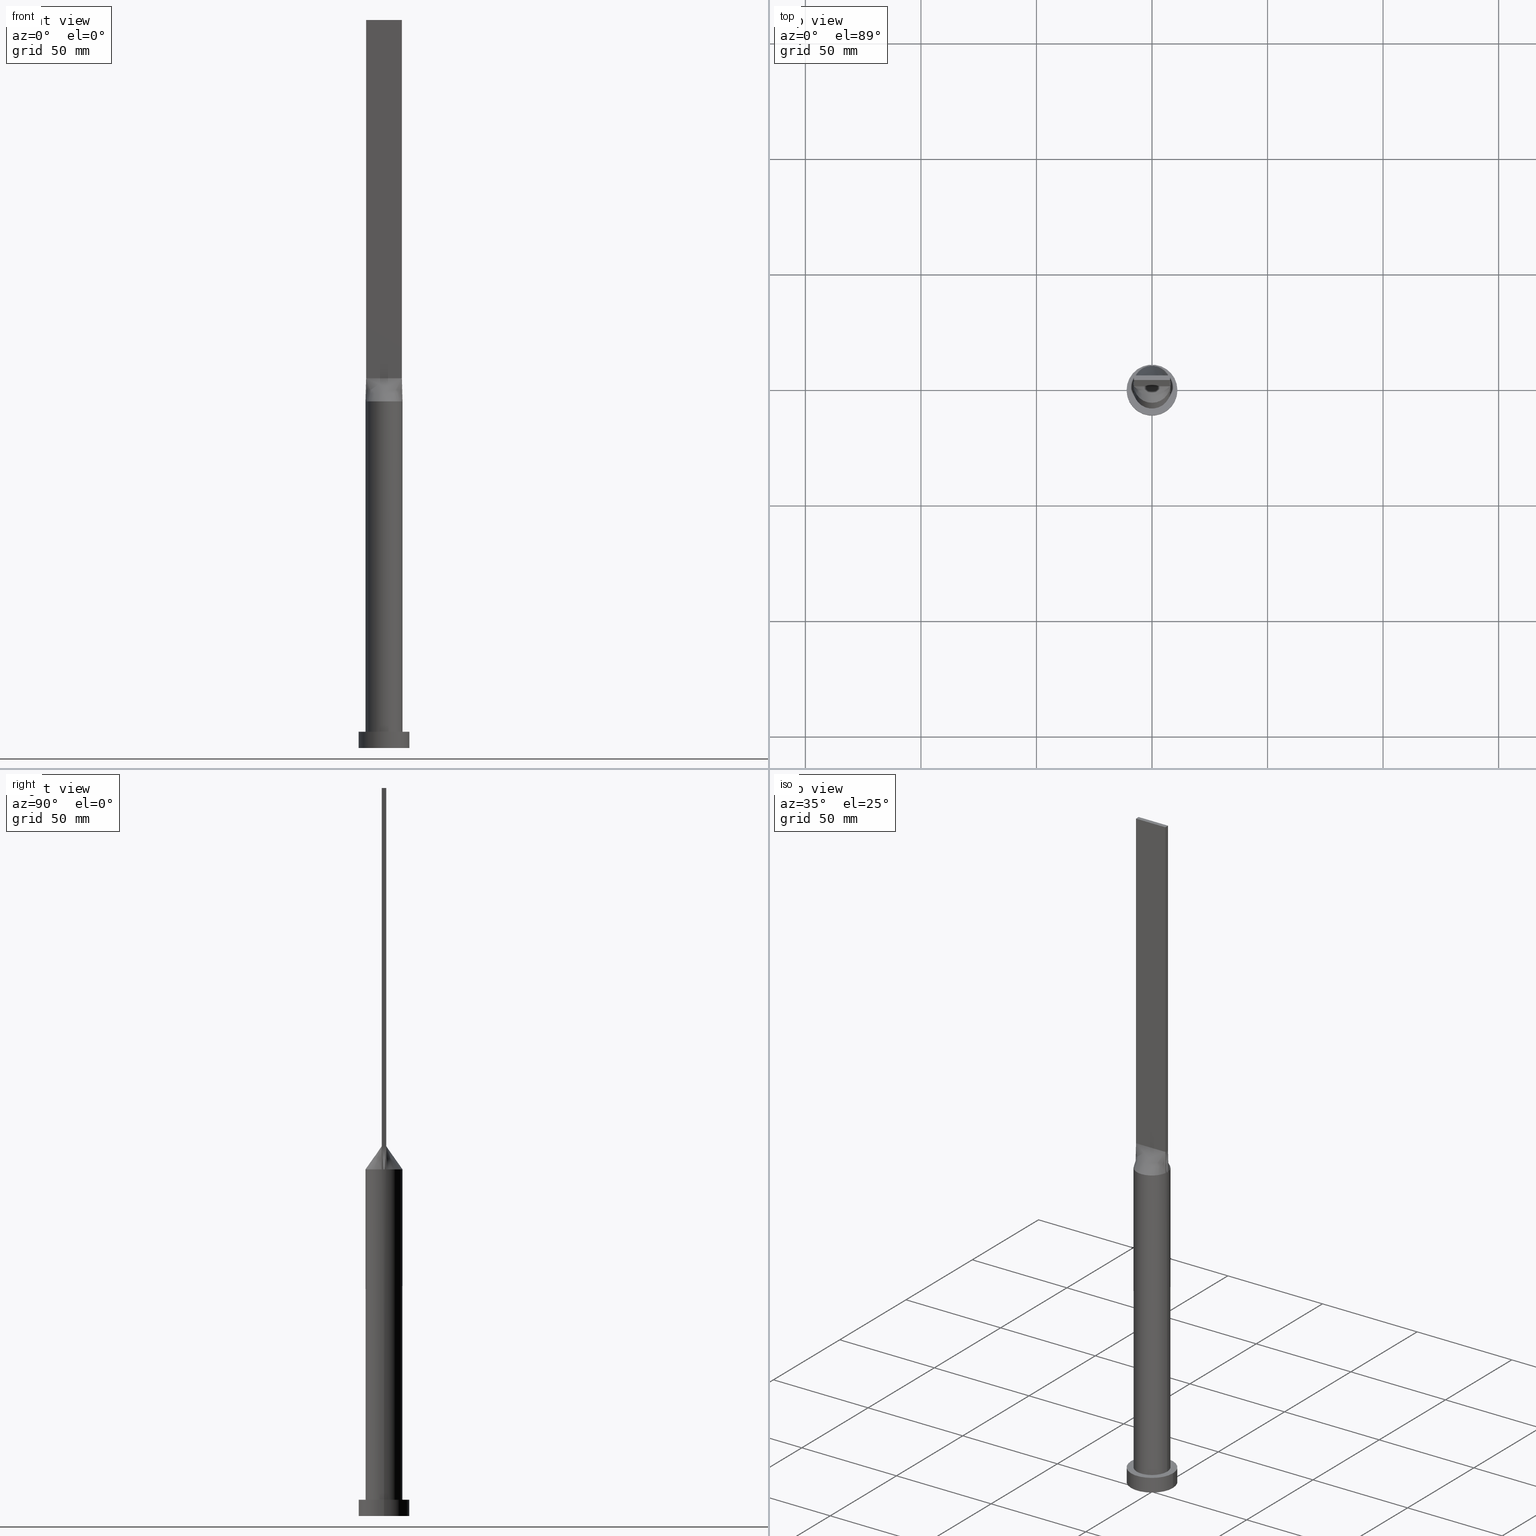
[diagram: canonical four-view strip — front | top / right | iso, engineering-drawing reading convention]
A machine part, canonical four-view strip (front | top / right | iso — engineering-drawing reading convention). The complete STEP part file that produces these views, byte-faithful:
ISO-10303-21;
HEADER;
FILE_DESCRIPTION (( 'STEP AP203' ),
    '1' );
FILE_NAME ('4bbe.STEP',
    '2023-02-13T08:32:22',
    ( '' ),
    ( '' ),
    'SwSTEP 2.0',
    'SolidWorks 2019',
    '' );
FILE_SCHEMA (( 'CONFIG_CONTROL_DESIGN' ));
ENDSEC;

DATA;
#1 = LOCAL_TIME ( 9, 32, 22.00000000000000000, #497 ) ;
#2 = LINE ( 'NONE', #356, #428 ) ;
#3 = CARTESIAN_POINT ( 'NONE',  ( 7.104166666666666963, 1.000000000000000000, 159.9999999999999716 ) ) ;
#4 = VERTEX_POINT ( 'NONE', #477 ) ;
#5 = ADVANCED_FACE ( 'NONE', ( #32 ), #42, .F. ) ;
#6 = CARTESIAN_POINT ( 'NONE',  ( 6.226863775955932212, 5.046530946333158241, 149.9999999999999716 ) ) ;
#7 = LINE ( 'NONE', #157, #421 ) ;
#8 = CARTESIAN_POINT ( 'NONE',  ( 1.291666666666668739, 1.000000000000000000, 159.9999999999999716 ) ) ;
#9 = CARTESIAN_POINT ( 'NONE',  ( 7.750000000000000000, 1.000000000000000000, 160.0000000000000000 ) ) ;
#10 = CARTESIAN_POINT ( 'NONE',  ( -2.302877821226939403, -7.683241396761614439, 150.0000000000000284 ) ) ;
#11 = CARTESIAN_POINT ( 'NONE',  ( -6.511821874825407974, 4.668925682402791821, 149.9999999999999716 ) ) ;
#12 = CARTESIAN_POINT ( 'NONE',  ( 6.511821874825409751, 4.668925682402791821, 149.9999999999999716 ) ) ;
#13 = CIRCLE ( 'NONE', #592, 8.000000000000000000 ) ;
#14 = CARTESIAN_POINT ( 'NONE',  ( 2.847317194822259534, 7.497028652483948008, 150.0000000000000000 ) ) ;
#15 = PERSON_AND_ORGANIZATION_ROLE ( 'design_supplier' ) ;
#16 = CARTESIAN_POINT ( 'NONE',  ( -7.934257051336532029, -1.023775119746132001, 150.0000000000000000 ) ) ;
#17 = CARTESIAN_POINT ( 'NONE',  ( 0.000000000000000000, 0.000000000000000000, 7.000000000000000000 ) ) ;
#18 = CARTESIAN_POINT ( 'NONE',  ( -0.6458333333333359239, -0.9999999999999991118, 160.0000000000000284 ) ) ;
#19 = EDGE_CURVE ( 'NONE', #57, #145, #350, .T. ) ;
#20 = APPLICATION_PROTOCOL_DEFINITION ( 'international standard', 'config_control_design', 1994, #574 ) ;
#21 = FACE_OUTER_BOUND ( 'NONE', #85, .T. ) ;
#22 = CARTESIAN_POINT ( 'NONE',  ( 8.000000000000000000, 9.797174393178825657E-16, 7.000000000000000000 ) ) ;
#23 = CARTESIAN_POINT ( 'NONE',  ( -6.511821874825407974, 4.668925682402791821, 149.9999999999999716 ) ) ;
#24 = CARTESIAN_POINT ( 'NONE',  ( -2.260416666666668295, -0.9999999999999991118, 160.0000000000000284 ) ) ;
#25 = DIRECTION ( 'NONE',  ( 0.01841911599500828389, -0.002376660128387961778, 0.9998275289531671772 ) ) ;
#26 = EDGE_CURVE ( 'NONE', #332, #280, #345, .T. ) ;
#27 = CARTESIAN_POINT ( 'NONE',  ( 2.847317194822259534, 7.497028652483948008, 150.0000000000000000 ) ) ;
#28 = EDGE_LOOP ( 'NONE', ( #506, #33, #198, #623 ) ) ;
#29 = VECTOR ( 'NONE', #25, 1000.000000000000114 ) ;
#30 = DIRECTION ( 'NONE',  ( -0.000000000000000000, -0.000000000000000000, -1.000000000000000000 ) ) ;
#31 = DIRECTION ( 'NONE',  ( 0.000000000000000000, 0.000000000000000000, 1.000000000000000000 ) ) ;
#32 = FACE_OUTER_BOUND ( 'NONE', #126, .T. ) ;
#33 = ORIENTED_EDGE ( 'NONE', *, *, #38, .T. ) ;
#34 = PLANE ( 'NONE',  #284 ) ;
#35 = PERSON ( 'NEUR�EN�', 'NEUR�EN�', 'NEUR�EN�', ('NEUR�EN�'), ('NEUR�EN�'), ('NEUR�EN�') ) ;
#36 = CC_DESIGN_SECURITY_CLASSIFICATION ( #369, ( #546 ) ) ;
#37 = EDGE_LOOP ( 'NONE', ( #150, #517, #473, #135 ) ) ;
#38 = EDGE_CURVE ( 'NONE', #4, #332, #483, .T. ) ;
#39 = ORIENTED_EDGE ( 'NONE', *, *, #271, .T. ) ;
#40 = ORIENTED_EDGE ( 'NONE', *, *, #276, .F. ) ;
#41 =( GEOMETRIC_REPRESENTATION_CONTEXT ( 3 ) GLOBAL_UNCERTAINTY_ASSIGNED_CONTEXT ( ( #450 ) ) GLOBAL_UNIT_ASSIGNED_CONTEXT ( ( #107, #573, #45 ) ) REPRESENTATION_CONTEXT ( 'NONE', 'WORKASPACE' ) );
#42 = PLANE ( 'NONE',  #498 ) ;
#43 = EDGE_LOOP ( 'NONE', ( #437, #465 ) ) ;
#44 = EDGE_CURVE ( 'NONE', #514, #231, #258, .T. ) ;
#45 =( NAMED_UNIT ( * ) SI_UNIT ( $, .STERADIAN. ) SOLID_ANGLE_UNIT ( ) );
#46 = DIRECTION ( 'NONE',  ( -0.000000000000000000, -0.000000000000000000, -1.000000000000000000 ) ) ;
#47 = DIRECTION ( 'NONE',  ( 6.994852725712932707E-17, 1.000000000000000000, -0.000000000000000000 ) ) ;
#48 = DIRECTION ( 'NONE',  ( 0.000000000000000000, -1.000000000000000000, 0.000000000000000000 ) ) ;
#49 = EDGE_LOOP ( 'NONE', ( #596, #133, #79, #520 ) ) ;
#50 = VECTOR ( 'NONE', #559, 1000.000000000000000 ) ;
#51 = CARTESIAN_POINT ( 'NONE',  ( -2.260416666666664742, 1.000000000000000000, 159.9999999999999716 ) ) ;
#52 = DIRECTION ( 'NONE',  ( -0.01841911599500828389, 0.002376660128388244104, 0.9998275289531671772 ) ) ;
#53 = CARTESIAN_POINT ( 'NONE',  ( -5.166666666666666963, -0.9999999999999986677, 159.9999999999999716 ) ) ;
#54 = ORIENTED_EDGE ( 'NONE', *, *, #354, .F. ) ;
#55 = CARTESIAN_POINT ( 'NONE',  ( 0.6458333333333352577, 1.000000000000000000, 159.9999999999999716 ) ) ;
#56 = CARTESIAN_POINT ( 'NONE',  ( 7.934222933072200945, -1.023770701041574860, 150.0000000000000000 ) ) ;
#57 = VERTEX_POINT ( 'NONE', #616 ) ;
#58 = LINE ( 'NONE', #165, #60 ) ;
#59 = PLANE ( 'NONE',  #264 ) ;
#60 = VECTOR ( 'NONE', #300, 1000.000000000000000 ) ;
#61 = EDGE_CURVE ( 'NONE', #303, #280, #192, .T. ) ;
#62 = PLANE ( 'NONE',  #138 ) ;
#63 = CARTESIAN_POINT ( 'NONE',  ( -1.614583333333335480, -0.9999999999999991118, 160.0000000000000284 ) ) ;
#64 = DIRECTION ( 'NONE',  ( 1.000000000000000000, -6.994852725712931474E-17, 0.000000000000000000 ) ) ;
#65 = CARTESIAN_POINT ( 'NONE',  ( 2.583333333333331705, -0.9999999999999991118, 159.9999999999999716 ) ) ;
#66 = VECTOR ( 'NONE', #52, 1000.000000000000114 ) ;
#67 = ORIENTED_EDGE ( 'NONE', *, *, #69, .F. ) ;
#68 = CARTESIAN_POINT ( 'NONE',  ( -2.583333333333335258, -0.9999999999999988898, 160.0000000000000000 ) ) ;
#69 = EDGE_CURVE ( 'NONE', #433, #145, #519, .T. ) ;
#70 = ORIENTED_EDGE ( 'NONE', *, *, #443, .T. ) ;
#71 = CARTESIAN_POINT ( 'NONE',  ( -8.000000000000000000, 0.000000000000000000, 150.0000000000000000 ) ) ;
#72 = CARTESIAN_POINT ( 'NONE',  ( 0.000000000000000000, 0.000000000000000000, 7.000000000000000000 ) ) ;
#73 = EDGE_LOOP ( 'NONE', ( #236, #70, #39, #187, #222, #176 ) ) ;
#74 = FACE_OUTER_BOUND ( 'NONE', #182, .T. ) ;
#75 = DIRECTION ( 'NONE',  ( -0.01841911599500828389, -0.002376660128388048514, 0.9998275289531671772 ) ) ;
#76 = CARTESIAN_POINT ( 'NONE',  ( -6.226863775955933100, 5.046530946333157353, 150.0000000000000000 ) ) ;
#77 = DIRECTION ( 'NONE',  ( 1.000000000000000000, 0.000000000000000000, 0.000000000000000000 ) ) ;
#78 = DIRECTION ( 'NONE',  ( 1.000000000000000000, 0.000000000000000000, 0.000000000000000000 ) ) ;
#79 = ORIENTED_EDGE ( 'NONE', *, *, #372, .T. ) ;
#80 = VECTOR ( 'NONE', #555, 1000.000000000000000 ) ;
#81 = APPROVAL ( #445, 'NEUR�EN�' ) ;
#82 = CARTESIAN_POINT ( 'NONE',  ( -7.750000000000000000, 1.000000000000000000, 315.0000000000000000 ) ) ;
#83 = AXIS2_PLACEMENT_3D ( 'NONE', #278, #30, #375 ) ;
#84 = ORIENTED_EDGE ( 'NONE', *, *, #61, .F. ) ;
#85 = EDGE_LOOP ( 'NONE', ( #572, #335, #244, #105, #571 ) ) ;
#86 = DIRECTION ( 'NONE',  ( -0.000000000000000000, 1.000000000000000000, -0.000000000000000000 ) ) ;
#87 = CARTESIAN_POINT ( 'NONE',  ( 5.489583333333333037, 1.000000000000000000, 159.9999999999999716 ) ) ;
#88 = EDGE_CURVE ( 'NONE', #373, #380, #482, .T. ) ;
#89 = CARTESIAN_POINT ( 'NONE',  ( 0.000000000000000000, 0.000000000000000000, 315.0000000000000000 ) ) ;
#90 = EDGE_LOOP ( 'NONE', ( #423, #54, #40, #254 ) ) ;
#91 = AXIS2_PLACEMENT_3D ( 'NONE', #455, #591, #156 ) ;
#92 = AXIS2_PLACEMENT_3D ( 'NONE', #250, #447, #160 ) ;
#93 = CARTESIAN_POINT ( 'NONE',  ( 11.00000000000000000, 1.347111479062088405E-15, 7.000000000000000000 ) ) ;
#94 = ORIENTED_EDGE ( 'NONE', *, *, #365, .F. ) ;
#95 = CARTESIAN_POINT ( 'NONE',  ( 7.849610172922084850, -1.679519592204998357, 149.9999999999999716 ) ) ;
#96 = DIRECTION ( 'NONE',  ( 0.000000000000000000, -1.000000000000000000, 0.000000000000000000 ) ) ;
#97 = ORIENTED_EDGE ( 'NONE', *, *, #302, .T. ) ;
#98 = FACE_OUTER_BOUND ( 'NONE', #37, .T. ) ;
#99 = PLANE ( 'NONE',  #608 ) ;
#100 = AXIS2_PLACEMENT_3D ( 'NONE', #282, #469, #567 ) ;
#101 = APPROVAL_ROLE ( '' ) ;
#102 = CARTESIAN_POINT ( 'NONE',  ( 0.5861720261543130750, 7.999999999999998224, 149.9999999999999716 ) ) ;
#103 = FACE_OUTER_BOUND ( 'NONE', #384, .T. ) ;
#104 = CARTESIAN_POINT ( 'NONE',  ( 6.511821874825409751, 4.668925682402791821, 149.9999999999999716 ) ) ;
#105 = ORIENTED_EDGE ( 'NONE', *, *, #26, .F. ) ;
#106 = CARTESIAN_POINT ( 'NONE',  ( 1.172177046651856624, 7.934824862069278950, 150.0000000000000000 ) ) ;
#107 =( LENGTH_UNIT ( ) NAMED_UNIT ( * ) SI_UNIT ( .MILLI., .METRE. ) );
#108 = DIRECTION ( 'NONE',  ( 1.000000000000000000, 0.000000000000000000, 0.000000000000000000 ) ) ;
#109 = CARTESIAN_POINT ( 'NONE',  ( 6.458333333333333037, 1.000000000000000000, 159.9999999999999716 ) ) ;
#110 = CARTESIAN_POINT ( 'NONE',  ( -4.197916666666666075, 1.000000000000000000, 160.0000000000000284 ) ) ;
#111 = CARTESIAN_POINT ( 'NONE',  ( -7.750000000000000000, -0.9999999999999986677, 315.0000000000000000 ) ) ;
#112 = CARTESIAN_POINT ( 'NONE',  ( 7.750000000000000000, 1.000000000000000000, 160.0000000000000000 ) ) ;
#113 = DATE_AND_TIME ( #361, #403 ) ;
#114 = CARTESIAN_POINT ( 'NONE',  ( -7.934222933072200945, 1.023770701041573972, 150.0000000000000000 ) ) ;
#115 = CARTESIAN_POINT ( 'NONE',  ( 0.000000000000000000, 0.000000000000000000, 150.0000000000000000 ) ) ;
#116 = CIRCLE ( 'NONE', #640, 8.000000000000000000 ) ;
#117 = PERSON_AND_ORGANIZATION_ROLE ( 'classification_officer' ) ;
#118 = CARTESIAN_POINT ( 'NONE',  ( 7.750000000000000000, -0.9999999999999997780, 315.0000000000000000 ) ) ;
#119 = CIRCLE ( 'NONE', #439, 8.000000000000000000 ) ;
#120 = B_SPLINE_SURFACE_WITH_KNOTS ( 'NONE', 3, 1, ( 
 ( #390, #344 ),
 ( #528, #436 ),
 ( #295, #633 ),
 ( #536, #307 ),
 ( #188, #53 ),
 ( #588, #387 ),
 ( #247, #575 ),
 ( #639, #394 ),
 ( #144, #149 ),
 ( #533, #68 ),
 ( #210, #24 ),
 ( #319, #63 ),
 ( #10, #406 ),
 ( #267, #18 ),
 ( #416, #402 ),
 ( #213, #552 ),
 ( #274, #411 ),
 ( #593, #601 ),
 ( #505, #161 ),
 ( #598, #310 ),
 ( #540, #65 ),
 ( #166, #457 ),
 ( #461, #217 ),
 ( #607, #124 ),
 ( #496, #239 ),
 ( #521, #628 ),
 ( #184, #481 ),
 ( #146, #342 ),
 ( #95, #294 ),
 ( #638, #392 ) ),
 .UNSPECIFIED., .F., .F., .F.,
 ( 4, 2, 2, 2, 2, 2, 2, 2, 2, 2, 2, 2, 2, 2, 4 ),
 ( 2, 2 ),
 ( 0.000000000000000000, 0.1250000000000000555, 0.1875000000000000555, 0.2500000000000000555, 0.3125000000000000000, 0.3750000000000000000, 0.4374999999999999445, 0.4999999999999999445, 0.5624999999999998890, 0.6249999999999998890, 0.6875000000000000000, 0.7500000000000000000, 0.8125000000000000000, 0.8750000000000000000, 1.000000000000000000 ),
 ( 0.000000000000000000, 1.000000000000000000 ),
 .UNSPECIFIED. ) ;
#121 = CARTESIAN_POINT ( 'NONE',  ( -7.675166908885236339, 2.399868494543667907, 150.0000000000000284 ) ) ;
#122 = EDGE_CURVE ( 'NONE', #141, #288, #563, .T. ) ;
#123 = CARTESIAN_POINT ( 'NONE',  ( -7.750000000000000000, -0.6666666666666652974, 159.9999999999999716 ) ) ;
#124 = CARTESIAN_POINT ( 'NONE',  ( 4.197916666666666075, -0.9999999999999993339, 159.9999999999999716 ) ) ;
#125 = CC_DESIGN_PERSON_AND_ORGANIZATION_ASSIGNMENT ( #277, #15, ( #546 ) ) ;
#126 = EDGE_LOOP ( 'NONE', ( #67, #139 ) ) ;
#127 = DIRECTION ( 'NONE',  ( -0.000000000000000000, -0.000000000000000000, -1.000000000000000000 ) ) ;
#128 = APPROVAL_PERSON_ORGANIZATION ( #454, #308, #463 ) ;
#129 = CARTESIAN_POINT ( 'NONE',  ( 2.302877821226935406, 7.683241396761612663, 150.0000000000000000 ) ) ;
#130 = CARTESIAN_POINT ( 'NONE',  ( 7.750000000000000000, 1.000000000000000000, 160.0000000000000000 ) ) ;
#131 = CARTESIAN_POINT ( 'NONE',  ( 0.000000000000000000, 0.000000000000000000, 0.000000000000000000 ) ) ;
#132 = ADVANCED_FACE ( 'NONE', ( #233 ), #621, .T. ) ;
#133 = ORIENTED_EDGE ( 'NONE', *, *, #613, .T. ) ;
#134 = CARTESIAN_POINT ( 'NONE',  ( -11.00000000000000000, 0.000000000000000000, 7.000000000000000000 ) ) ;
#135 = ORIENTED_EDGE ( 'NONE', *, *, #396, .F. ) ;
#136 = SHAPE_DEFINITION_REPRESENTATION ( #420, #499 ) ;
#137 = DIRECTION ( 'NONE',  ( -0.000000000000000000, -0.000000000000000000, -1.000000000000000000 ) ) ;
#138 = AXIS2_PLACEMENT_3D ( 'NONE', #17, #318, #460 ) ;
#139 = ORIENTED_EDGE ( 'NONE', *, *, #627, .F. ) ;
#140 = EDGE_LOOP ( 'NONE', ( #529, #84, #614, #286 ) ) ;
#141 = VERTEX_POINT ( 'NONE', #564 ) ;
#142 = PERSON_AND_ORGANIZATION ( #35, #577 ) ;
#143 = CARTESIAN_POINT ( 'NONE',  ( -7.104166666666667851, 1.000000000000000000, 160.0000000000000284 ) ) ;
#144 = CARTESIAN_POINT ( 'NONE',  ( -5.183259239191617240, -6.116644610143057825, 150.0000000000000000 ) ) ;
#145 = VERTEX_POINT ( 'NONE', #334 ) ;
#146 = CARTESIAN_POINT ( 'NONE',  ( 7.675166908885234562, -2.399868494543666131, 150.0000000000000284 ) ) ;
#147 = CALENDAR_DATE ( 2023, 13, 2 ) ;
#148 = CIRCLE ( 'NONE', #368, 11.00000000000000000 ) ;
#149 = CARTESIAN_POINT ( 'NONE',  ( -3.229166666666667407, -0.9999999999999986677, 160.0000000000000000 ) ) ;
#150 = ORIENTED_EDGE ( 'NONE', *, *, #218, .F. ) ;
#151 = EDGE_CURVE ( 'NONE', #610, #339, #472, .T. ) ;
#152 = CARTESIAN_POINT ( 'NONE',  ( 4.333237558274722900, 6.745559271922132893, 150.0000000000000000 ) ) ;
#153 = CARTESIAN_POINT ( 'NONE',  ( 7.934252830235720033, 1.023774570959714802, 150.0000000000000000 ) ) ;
#154 = CARTESIAN_POINT ( 'NONE',  ( -1.172177046651856402, 7.934824862069282503, 150.0000000000000000 ) ) ;
#155 = FACE_OUTER_BOUND ( 'NONE', #49, .T. ) ;
#156 = DIRECTION ( 'NONE',  ( 1.000000000000000000, 0.000000000000000000, 0.000000000000000000 ) ) ;
#157 = CARTESIAN_POINT ( 'NONE',  ( -7.750000000000000000, 1.000000000000000000, 315.0000000000000000 ) ) ;
#158 = VECTOR ( 'NONE', #381, 1000.000000000000000 ) ;
#159 = CARTESIAN_POINT ( 'NONE',  ( -4.333237558274722900, 6.745559271922134670, 150.0000000000000000 ) ) ;
#160 = DIRECTION ( 'NONE',  ( -0.000000000000000000, 0.000000000000000000, -1.000000000000000000 ) ) ;
#161 = CARTESIAN_POINT ( 'NONE',  ( 1.614583333333330373, -0.9999999999999991118, 160.0000000000000000 ) ) ;
#162 = COORDINATED_UNIVERSAL_TIME_OFFSET ( 1, 0, .AHEAD. ) ;
#163 = CARTESIAN_POINT ( 'NONE',  ( -7.750000000000000000, -0.3333333333333321491, 159.9999999999999716 ) ) ;
#164 = CARTESIAN_POINT ( 'NONE',  ( 3.552083333333335258, 1.000000000000000000, 160.0000000000000284 ) ) ;
#165 = CARTESIAN_POINT ( 'NONE',  ( 7.750000000000000000, -0.9999999999999997780, 315.0000000000000000 ) ) ;
#166 = CARTESIAN_POINT ( 'NONE',  ( 5.183259239191612799, -6.116644610143060490, 150.0000000000000568 ) ) ;
#167 = CLOSED_SHELL ( 'NONE', ( #587, #458, #379, #475, #5, #132, #451, #196, #516, #556, #248, #226, #237, #340, #467 ) ) ;
#168 = DATE_AND_TIME ( #404, #1 ) ;
#169 = CARTESIAN_POINT ( 'NONE',  ( 7.750000000000000000, 0.3333333333333338699, 159.9999999999999716 ) ) ;
#170 = CARTESIAN_POINT ( 'NONE',  ( 0.000000000000000000, 0.000000000000000000, 150.0000000000000000 ) ) ;
#171 = CARTESIAN_POINT ( 'NONE',  ( -7.977894035085166813, -0.6853196604410948245, 150.0000000000000000 ) ) ;
#172 = APPROVAL_DATE_TIME ( #605, #308 ) ;
#173 = LINE ( 'NONE', #134, #527 ) ;
#174 = CARTESIAN_POINT ( 'NONE',  ( -1.172177046651856402, 7.934824862069282503, 150.0000000000000000 ) ) ;
#175 = LINE ( 'NONE', #371, #50 ) ;
#176 = ORIENTED_EDGE ( 'NONE', *, *, #293, .F. ) ;
#177 = CARTESIAN_POINT ( 'NONE',  ( -7.192469010134845853, 3.526369025759696019, 149.9999999999999716 ) ) ;
#178 = LINE ( 'NONE', #71, #336 ) ;
#179 = EDGE_CURVE ( 'NONE', #641, #631, #212, .T. ) ;
#180 = ORIENTED_EDGE ( 'NONE', *, *, #19, .F. ) ;
#181 = CARTESIAN_POINT ( 'NONE',  ( 0.000000000000000000, 0.000000000000000000, 150.0000000000000000 ) ) ;
#182 = EDGE_LOOP ( 'NONE', ( #180, #566, #430, #471 ) ) ;
#183 = LINE ( 'NONE', #565, #80 ) ;
#184 = CARTESIAN_POINT ( 'NONE',  ( 7.192469010134844964, -3.526369025759696907, 150.0000000000000000 ) ) ;
#185 = CARTESIAN_POINT ( 'NONE',  ( 7.675166908885234562, 2.399868494543665243, 149.9999999999999147 ) ) ;
#186 = VERTEX_POINT ( 'NONE', #9 ) ;
#187 = ORIENTED_EDGE ( 'NONE', *, *, #337, .F. ) ;
#188 = CARTESIAN_POINT ( 'NONE',  ( -6.994548530637818118, -3.908833842696237681, 149.9999999999999716 ) ) ;
#189 = VECTOR ( 'NONE', #560, 1000.000000000000000 ) ;
#190 = ORIENTED_EDGE ( 'NONE', *, *, #61, .T. ) ;
#191 = DIRECTION ( 'NONE',  ( -0.000000000000000000, -0.000000000000000000, -1.000000000000000000 ) ) ;
#192 = LINE ( 'NONE', #376, #189 ) ;
#193 = AXIS2_PLACEMENT_3D ( 'NONE', #89, #279, #209 ) ;
#194 = CARTESIAN_POINT ( 'NONE',  ( -7.750000000000000000, 1.000000000000000000, 160.0000000000000000 ) ) ;
#195 = AXIS2_PLACEMENT_3D ( 'NONE', #561, #323, #78 ) ;
#196 = ADVANCED_FACE ( 'NONE', ( #440 ), #234, .T. ) ;
#197 = DIRECTION ( 'NONE',  ( 0.000000000000000000, -0.000000000000000000, -1.000000000000000000 ) ) ;
#198 = ORIENTED_EDGE ( 'NONE', *, *, #508, .F. ) ;
#199 = CARTESIAN_POINT ( 'NONE',  ( 7.750000000000000000, -0.6666666666666662966, 159.9999999999999716 ) ) ;
#200 = CARTESIAN_POINT ( 'NONE',  ( 4.520833333333334814, 1.000000000000000000, 160.0000000000000284 ) ) ;
#201 = CARTESIAN_POINT ( 'NONE',  ( -7.999729586091648414, -0.3426598302205468571, 150.0000000000000000 ) ) ;
#202 = CARTESIAN_POINT ( 'NONE',  ( -3.552083333333332593, 1.000000000000000000, 160.0000000000000284 ) ) ;
#203 = EDGE_CURVE ( 'NONE', #329, #631, #2, .T. ) ;
#204 = CARTESIAN_POINT ( 'NONE',  ( -7.675166908885236339, 2.399868494543667907, 150.0000000000000284 ) ) ;
#205 = APPROVAL_PERSON_ORGANIZATION ( #142, #391, #479 ) ;
#206 = ORIENTED_EDGE ( 'NONE', *, *, #203, .F. ) ;
#207 = CARTESIAN_POINT ( 'NONE',  ( -5.166666666666666963, 1.000000000000000000, 160.0000000000000284 ) ) ;
#208 = CARTESIAN_POINT ( 'NONE',  ( 5.562660223239392465, 5.770452176164421410, 149.9999999999999716 ) ) ;
#209 = DIRECTION ( 'NONE',  ( 1.000000000000000000, 0.000000000000000000, -0.000000000000000000 ) ) ;
#210 = CARTESIAN_POINT ( 'NONE',  ( -3.862537548001458987, -7.028047916340261381, 150.0000000000000000 ) ) ;
#211 = CARTESIAN_POINT ( 'NONE',  ( -1.291666666666664742, 1.000000000000000000, 159.9999999999999716 ) ) ;
#212 = LINE ( 'NONE', #401, #66 ) ;
#213 = CARTESIAN_POINT ( 'NONE',  ( 0.5861720261543107435, -8.000000000000001776, 150.0000000000000284 ) ) ;
#214 = AXIS2_PLACEMENT_3D ( 'NONE', #72, #285, #579 ) ;
#215 = CARTESIAN_POINT ( 'NONE',  ( -7.999729586091648414, 0.3426598302205489666, 150.0000000000000000 ) ) ;
#216 = CARTESIAN_POINT ( 'NONE',  ( 0.000000000000000000, 0.000000000000000000, 7.000000000000000000 ) ) ;
#217 = CARTESIAN_POINT ( 'NONE',  ( 3.552083333333333037, -0.9999999999999993339, 159.9999999999999716 ) ) ;
#218 = EDGE_CURVE ( 'NONE', #57, #581, #322, .T. ) ;
#219 = DIRECTION ( 'NONE',  ( -0.01841911599500845736, -0.002376660128388070198, -0.9998275289531671772 ) ) ;
#220 = LINE ( 'NONE', #227, #291 ) ;
#221 = VECTOR ( 'NONE', #191, 1000.000000000000000 ) ;
#222 = ORIENTED_EDGE ( 'NONE', *, *, #255, .F. ) ;
#223 = CARTESIAN_POINT ( 'NONE',  ( -7.750000000000000000, -0.9999999999999986677, 160.0000000000000000 ) ) ;
#224 = COORDINATED_UNIVERSAL_TIME_OFFSET ( 1, 0, .AHEAD. ) ;
#225 = LINE ( 'NONE', #553, #230 ) ;
#226 = ADVANCED_FACE ( 'NONE', ( #405 ), #297, .F. ) ;
#227 = CARTESIAN_POINT ( 'NONE',  ( 8.000000000000000000, 9.797174393178825657E-16, 150.0000000000000000 ) ) ;
#228 = FACE_OUTER_BOUND ( 'NONE', #28, .T. ) ;
#229 = CARTESIAN_POINT ( 'NONE',  ( 0.000000000000000000, 0.000000000000000000, 0.000000000000000000 ) ) ;
#230 = VECTOR ( 'NONE', #127, 1000.000000000000000 ) ;
#231 = VERTEX_POINT ( 'NONE', #597 ) ;
#232 = CARTESIAN_POINT ( 'NONE',  ( -7.750000000000000000, 1.000000000000000000, 315.0000000000000000 ) ) ;
#233 = FACE_OUTER_BOUND ( 'NONE', #290, .T. ) ;
#234 = B_SPLINE_SURFACE_WITH_KNOTS ( 'NONE', 3, 1, ( 
 ( #56, #253 ),
 ( #257, #199 ),
 ( #534, #494 ),
 ( #410, #169 ),
 ( #531, #360 ),
 ( #500, #502 ) ),
 .UNSPECIFIED., .F., .F., .F.,
 ( 4, 2, 4 ),
 ( 2, 2 ),
 ( 0.000000000000000000, 0.5000000000000000000, 1.000000000000000000 ),
 ( 0.000000000000000000, 1.000000000000000000 ),
 .UNSPECIFIED. ) ;
#235 = ORIENTED_EDGE ( 'NONE', *, *, #325, .T. ) ;
#236 = ORIENTED_EDGE ( 'NONE', *, *, #44, .F. ) ;
#237 = ADVANCED_FACE ( 'NONE', ( #538 ), #99, .F. ) ;
#238 = ORIENTED_EDGE ( 'NONE', *, *, #548, .F. ) ;
#239 = CARTESIAN_POINT ( 'NONE',  ( 4.520833333333332149, -0.9999999999999995559, 159.9999999999999716 ) ) ;
#240 = DIRECTION ( 'NONE',  ( -0.000000000000000000, -0.000000000000000000, -1.000000000000000000 ) ) ;
#241 = CARTESIAN_POINT ( 'NONE',  ( 7.849610172922079521, 1.679519592204998801, 149.9999999999999432 ) ) ;
#242 = PLANE ( 'NONE',  #193 ) ;
#243 = CC_DESIGN_PERSON_AND_ORGANIZATION_ASSIGNMENT ( #409, #117, ( #369 ) ) ;
#244 = ORIENTED_EDGE ( 'NONE', *, *, #302, .F. ) ;
#245 = CARTESIAN_POINT ( 'NONE',  ( 0.000000000000000000, 0.000000000000000000, 150.0000000000000000 ) ) ;
#246 = CARTESIAN_POINT ( 'NONE',  ( -5.489583333333333925, 1.000000000000000000, 160.0000000000000284 ) ) ;
#247 = CARTESIAN_POINT ( 'NONE',  ( -6.226863775955933988, -5.046530946333157353, 149.9999999999999432 ) ) ;
#248 = ADVANCED_FACE ( 'NONE', ( #103 ), #59, .F. ) ;
#249 = CARTESIAN_POINT ( 'NONE',  ( -3.862537548001455878, 7.028047916340264045, 150.0000000000000000 ) ) ;
#250 = CARTESIAN_POINT ( 'NONE',  ( -7.750000000000000000, 1.000000000000000000, 315.0000000000000000 ) ) ;
#251 = DIRECTION ( 'NONE',  ( 1.000000000000000000, 0.000000000000000000, 0.000000000000000000 ) ) ;
#252 = CARTESIAN_POINT ( 'NONE',  ( -5.562660223239390689, 5.770452176164420521, 149.9999999999999716 ) ) ;
#253 = CARTESIAN_POINT ( 'NONE',  ( 7.750000000000000000, -1.000000000000000000, 160.0000000000000000 ) ) ;
#254 = ORIENTED_EDGE ( 'NONE', *, *, #203, .T. ) ;
#255 = EDGE_CURVE ( 'NONE', #4, #141, #283, .T. ) ;
#256 = CARTESIAN_POINT ( 'NONE',  ( -2.302877821226935851, 7.683241396761610886, 150.0000000000000000 ) ) ;
#257 = CARTESIAN_POINT ( 'NONE',  ( 7.977894035085165036, -0.6853196604410977111, 150.0000000000000000 ) ) ;
#258 = CIRCLE ( 'NONE', #407, 8.000000000000000000 ) ;
#259 = APPROVAL_STATUS ( 'not_yet_approved' ) ;
#260 = CARTESIAN_POINT ( 'NONE',  ( -7.934222933072202721, -1.023770701041571973, 150.0000000000000000 ) ) ;
#261 = CARTESIAN_POINT ( 'NONE',  ( -4.520833333333332149, 1.000000000000000000, 160.0000000000000284 ) ) ;
#262 = CARTESIAN_POINT ( 'NONE',  ( 7.675166908885234562, 2.399868494543665243, 149.9999999999999147 ) ) ;
#263 = CARTESIAN_POINT ( 'NONE',  ( 7.192469010134847629, 3.526369025759696907, 150.0000000000000284 ) ) ;
#264 = AXIS2_PLACEMENT_3D ( 'NONE', #600, #535, #197 ) ;
#265 = DATE_TIME_ROLE ( 'creation_date' ) ;
#266 = DIRECTION ( 'NONE',  ( 0.000000000000000000, 0.000000000000000000, 1.000000000000000000 ) ) ;
#267 = CARTESIAN_POINT ( 'NONE',  ( -1.172177046651859511, -7.934824862069280726, 150.0000000000000284 ) ) ;
#268 = CARTESIAN_POINT ( 'NONE',  ( 0.000000000000000000, 0.000000000000000000, 150.0000000000000000 ) ) ;
#269 = MANIFOLD_SOLID_BREP ( 'P�idat vysunut�m5', #167 ) ;
#270 = VECTOR ( 'NONE', #96, 1000.000000000000000 ) ;
#271 = EDGE_CURVE ( 'NONE', #380, #373, #116, .T. ) ;
#272 = CARTESIAN_POINT ( 'NONE',  ( -7.750000000000000000, 1.000000000000000000, 160.0000000000000000 ) ) ;
#273 = CARTESIAN_POINT ( 'NONE',  ( 0.5861720261543130750, 7.999999999999998224, 149.9999999999999716 ) ) ;
#274 = CARTESIAN_POINT ( 'NONE',  ( 1.172177046651855292, -7.934824862069280726, 150.0000000000000284 ) ) ;
#275 = FACE_OUTER_BOUND ( 'NONE', #90, .T. ) ;
#276 = EDGE_CURVE ( 'NONE', #329, #610, #58, .T. ) ;
#277 = PERSON_AND_ORGANIZATION ( #35, #577 ) ;
#278 = CARTESIAN_POINT ( 'NONE',  ( 0.000000000000000000, 0.000000000000000000, 7.000000000000000000 ) ) ;
#279 = DIRECTION ( 'NONE',  ( 0.000000000000000000, 0.000000000000000000, 1.000000000000000000 ) ) ;
#280 = VERTEX_POINT ( 'NONE', #583 ) ;
#281 = CARTESIAN_POINT ( 'NONE',  ( 1.172177046651856624, 7.934824862069278950, 150.0000000000000000 ) ) ;
#282 = CARTESIAN_POINT ( 'NONE',  ( 0.000000000000000000, 0.000000000000000000, 150.0000000000000000 ) ) ;
#283 = CIRCLE ( 'NONE', #374, 8.000000000000000000 ) ;
#284 = AXIS2_PLACEMENT_3D ( 'NONE', #620, #612, #367 ) ;
#285 = DIRECTION ( 'NONE',  ( 0.000000000000000000, 0.000000000000000000, 1.000000000000000000 ) ) ;
#286 = ORIENTED_EDGE ( 'NONE', *, *, #425, .T. ) ;
#287 = CARTESIAN_POINT ( 'NONE',  ( 6.226863775955932212, 5.046530946333158241, 149.9999999999999716 ) ) ;
#288 = VERTEX_POINT ( 'NONE', #16 ) ;
#289 = APPROVAL_DATE_TIME ( #558, #391 ) ;
#290 = EDGE_LOOP ( 'NONE', ( #341, #94, #358, #589, #431, #569 ) ) ;
#291 = VECTOR ( 'NONE', #240, 1000.000000000000000 ) ;
#292 = DIRECTION ( 'NONE',  ( -1.000000000000000000, 0.000000000000000000, 0.000000000000000000 ) ) ;
#293 = EDGE_CURVE ( 'NONE', #231, #4, #578, .T. ) ;
#294 = CARTESIAN_POINT ( 'NONE',  ( 7.104166666666666963, -0.9999999999999995559, 159.9999999999999716 ) ) ;
#295 = CARTESIAN_POINT ( 'NONE',  ( -7.675166908885238115, -2.399868494543664799, 149.9999999999999432 ) ) ;
#296 = CYLINDRICAL_SURFACE ( 'NONE', #343, 11.00000000000000000 ) ;
#297 = PLANE ( 'NONE',  #92 ) ;
#298 = CYLINDRICAL_SURFACE ( 'NONE', #434, 8.000000000000000000 ) ;
#299 = CARTESIAN_POINT ( 'NONE',  ( -2.583333333333331705, 1.000000000000000000, 160.0000000000000000 ) ) ;
#300 = DIRECTION ( 'NONE',  ( 0.000000000000000000, 1.000000000000000000, 0.000000000000000000 ) ) ;
#301 = CARTESIAN_POINT ( 'NONE',  ( 6.994548530637815453, 3.908833842696238570, 149.9999999999999716 ) ) ;
#302 = EDGE_CURVE ( 'NONE', #280, #288, #321, .T. ) ;
#303 = VERTEX_POINT ( 'NONE', #609 ) ;
#304 = CARTESIAN_POINT ( 'NONE',  ( -0.6458333333333313719, 1.000000000000000000, 159.9999999999999716 ) ) ;
#305 = DIRECTION ( 'NONE',  ( -1.000000000000000000, 6.994852725712932707E-17, 0.000000000000000000 ) ) ;
#306 = CARTESIAN_POINT ( 'NONE',  ( 4.197916666666668739, 1.000000000000000000, 160.0000000000000284 ) ) ;
#307 = CARTESIAN_POINT ( 'NONE',  ( -5.489583333333333037, -0.9999999999999986677, 159.9999999999999716 ) ) ;
#308 = APPROVAL ( #511, 'NEUR�EN�' ) ;
#309 = DIRECTION ( 'NONE',  ( 1.000000000000000000, 0.000000000000000000, 0.000000000000000000 ) ) ;
#310 = CARTESIAN_POINT ( 'NONE',  ( 2.260416666666664298, -0.9999999999999991118, 160.0000000000000000 ) ) ;
#311 = CARTESIAN_POINT ( 'NONE',  ( 0.3229166666666686281, 1.000000000000000000, 159.9999999999999716 ) ) ;
#312 = DIRECTION ( 'NONE',  ( -0.000000000000000000, -0.000000000000000000, -1.000000000000000000 ) ) ;
#313 = FACE_BOUND ( 'NONE', #632, .T. ) ;
#314 = CC_DESIGN_APPROVAL ( #308, ( #546 ) ) ;
#315 = LOCAL_TIME ( 9, 32, 22.00000000000000000, #224 ) ;
#316 = CARTESIAN_POINT ( 'NONE',  ( -4.333237558274722900, 6.745559271922134670, 150.0000000000000000 ) ) ;
#317 = CC_DESIGN_PERSON_AND_ORGANIZATION_ASSIGNMENT ( #630, #383, ( #549 ) ) ;
#318 = DIRECTION ( 'NONE',  ( 0.000000000000000000, 0.000000000000000000, 1.000000000000000000 ) ) ;
#319 = CARTESIAN_POINT ( 'NONE',  ( -2.847317194822263531, -7.497028652483947120, 150.0000000000000284 ) ) ;
#320 = ORIENTED_EDGE ( 'NONE', *, *, #179, .F. ) ;
#321 = LINE ( 'NONE', #330, #468 ) ;
#322 = CIRCLE ( 'NONE', #91, 11.00000000000000000 ) ;
#323 = DIRECTION ( 'NONE',  ( 0.000000000000000000, 0.000000000000000000, 1.000000000000000000 ) ) ;
#324 = DIRECTION ( 'NONE',  ( 0.000000000000000000, 0.000000000000000000, 1.000000000000000000 ) ) ;
#325 = EDGE_CURVE ( 'NONE', #288, #641, #119, .T. ) ;
#326 = ORIENTED_EDGE ( 'NONE', *, *, #179, .T. ) ;
#327 = CIRCLE ( 'NONE', #513, 11.00000000000000000 ) ;
#328 = DIRECTION ( 'NONE',  ( 1.000000000000000000, 9.769962616701377556E-15, 0.000000000000000000 ) ) ;
#329 = VERTEX_POINT ( 'NONE', #118 ) ;
#330 = CARTESIAN_POINT ( 'NONE',  ( -7.842111466536100473, -1.011885350520785209, 155.0000000000000000 ) ) ;
#331 = DIRECTION ( 'NONE',  ( 1.000000000000000000, 0.000000000000000000, 0.000000000000000000 ) ) ;
#332 = VERTEX_POINT ( 'NONE', #419 ) ;
#333 = DIRECTION ( 'NONE',  ( -0.000000000000000000, -0.000000000000000000, -1.000000000000000000 ) ) ;
#334 = CARTESIAN_POINT ( 'NONE',  ( 11.00000000000000000, 1.347111479062088405E-15, 0.000000000000000000 ) ) ;
#335 = ORIENTED_EDGE ( 'NONE', *, *, #122, .T. ) ;
#336 = VECTOR ( 'NONE', #504, 1000.000000000000000 ) ;
#337 = EDGE_CURVE ( 'NONE', #141, #373, #178, .T. ) ;
#338 = DIRECTION ( 'NONE',  ( -1.000000000000000000, 0.000000000000000000, 0.000000000000000000 ) ) ;
#339 = VERTEX_POINT ( 'NONE', #232 ) ;
#340 = ADVANCED_FACE ( 'NONE', ( #275 ), #34, .F. ) ;
#341 = ORIENTED_EDGE ( 'NONE', *, *, #443, .F. ) ;
#342 = CARTESIAN_POINT ( 'NONE',  ( 6.458333333333333925, -0.9999999999999995559, 159.9999999999999716 ) ) ;
#343 = AXIS2_PLACEMENT_3D ( 'NONE', #485, #46, #585 ) ;
#344 = CARTESIAN_POINT ( 'NONE',  ( -7.750000000000000000, -0.9999999999999986677, 160.0000000000000000 ) ) ;
#345 = LINE ( 'NONE', #438, #270 ) ;
#346 = ORIENTED_EDGE ( 'NONE', *, *, #372, .F. ) ;
#347 = CARTESIAN_POINT ( 'NONE',  ( 2.302877821226935406, 7.683241396761612663, 150.0000000000000000 ) ) ;
#348 = CARTESIAN_POINT ( 'NONE',  ( 5.166666666666667851, 1.000000000000000000, 160.0000000000000000 ) ) ;
#349 = CARTESIAN_POINT ( 'NONE',  ( -11.00000000000000000, 0.000000000000000000, 7.000000000000000000 ) ) ;
#350 = LINE ( 'NONE', #93, #221 ) ;
#351 = AXIS2_PLACEMENT_3D ( 'NONE', #181, #137, #338 ) ;
#352 = CARTESIAN_POINT ( 'NONE',  ( 2.260416666666668295, 1.000000000000000000, 160.0000000000000000 ) ) ;
#353 = CARTESIAN_POINT ( 'NONE',  ( 7.849610172922079521, 1.679519592204998801, 149.9999999999999432 ) ) ;
#354 = EDGE_CURVE ( 'NONE', #610, #186, #225, .T. ) ;
#355 = ORIENTED_EDGE ( 'NONE', *, *, #548, .T. ) ;
#356 = CARTESIAN_POINT ( 'NONE',  ( 7.750000000000000000, -0.9999999999999997780, 315.0000000000000000 ) ) ;
#357 = PERSON_AND_ORGANIZATION ( #35, #577 ) ;
#358 = ORIENTED_EDGE ( 'NONE', *, *, #325, .F. ) ;
#359 = CARTESIAN_POINT ( 'NONE',  ( -5.183259239191613688, 6.116644610143057825, 150.0000000000000568 ) ) ;
#360 = CARTESIAN_POINT ( 'NONE',  ( 7.750000000000000000, 0.6666666666666669627, 159.9999999999999716 ) ) ;
#361 = CALENDAR_DATE ( 2023, 13, 2 ) ;
#362 = CARTESIAN_POINT ( 'NONE',  ( 3.862537548001455878, 7.028047916340264933, 150.0000000000000000 ) ) ;
#363 = CARTESIAN_POINT ( 'NONE',  ( 5.183259239191615464, 6.116644610143058713, 150.0000000000000000 ) ) ;
#364 = DESIGN_CONTEXT ( 'detailed design', #386, 'design' ) ;
#365 = EDGE_CURVE ( 'NONE', #641, #514, #13, .T. ) ;
#366 = PERSON_AND_ORGANIZATION_ROLE ( 'creator' ) ;
#367 = DIRECTION ( 'NONE',  ( 0.000000000000000000, 0.000000000000000000, 1.000000000000000000 ) ) ;
#368 = AXIS2_PLACEMENT_3D ( 'NONE', #216, #412, #606 ) ;
#369 = SECURITY_CLASSIFICATION ( '', '', #547 ) ;
#370 = CARTESIAN_POINT ( 'NONE',  ( -6.994548530637814565, 3.908833842696238570, 149.9999999999999432 ) ) ;
#371 = CARTESIAN_POINT ( 'NONE',  ( -7.750000000000000000, 1.000000000000000000, 160.0000000000000000 ) ) ;
#372 = EDGE_CURVE ( 'NONE', #303, #329, #515, .T. ) ;
#373 = VERTEX_POINT ( 'NONE', #518 ) ;
#374 = AXIS2_PLACEMENT_3D ( 'NONE', #115, #266, #309 ) ;
#375 = DIRECTION ( 'NONE',  ( -1.000000000000000000, 0.000000000000000000, 0.000000000000000000 ) ) ;
#376 = CARTESIAN_POINT ( 'NONE',  ( -7.750000000000000000, -0.9999999999999986677, 315.0000000000000000 ) ) ;
#377 = DIRECTION ( 'NONE',  ( 1.000000000000000000, 0.000000000000000000, -0.000000000000000000 ) ) ;
#378 = EDGE_LOOP ( 'NONE', ( #355, #206, #346, #190 ) ) ;
#379 = ADVANCED_FACE ( 'NONE', ( #74 ), #464, .T. ) ;
#380 = VERTEX_POINT ( 'NONE', #22 ) ;
#381 = DIRECTION ( 'NONE',  ( -0.000000000000000000, -0.000000000000000000, -1.000000000000000000 ) ) ;
#382 = B_SPLINE_SURFACE_WITH_KNOTS ( 'NONE', 3, 1, ( 
 ( #539, #112 ),
 ( #241, #3 ),
 ( #185, #109 ),
 ( #263, #87 ),
 ( #301, #348 ),
 ( #104, #200 ),
 ( #287, #306 ),
 ( #495, #164 ),
 ( #453, #493 ),
 ( #152, #397 ),
 ( #362, #352 ),
 ( #14, #501 ),
 ( #347, #8 ),
 ( #106, #55 ),
 ( #102, #311 ),
 ( #537, #541 ),
 ( #154, #304 ),
 ( #256, #211 ),
 ( #408, #446 ),
 ( #249, #51 ),
 ( #159, #299 ),
 ( #359, #490 ),
 ( #252, #202 ),
 ( #400, #110 ),
 ( #11, #261 ),
 ( #448, #207 ),
 ( #432, #246 ),
 ( #204, #580 ),
 ( #399, #143 ),
 ( #442, #194 ) ),
 .UNSPECIFIED., .F., .F., .F.,
 ( 4, 2, 2, 2, 2, 2, 2, 2, 2, 2, 2, 2, 2, 2, 4 ),
 ( 2, 2 ),
 ( 0.000000000000000000, 0.1250000000000000000, 0.1875000000000000000, 0.2500000000000000000, 0.3125000000000000000, 0.3750000000000000000, 0.4375000000000000000, 0.5000000000000000000, 0.5625000000000000000, 0.6250000000000000000, 0.6875000000000000000, 0.7500000000000000000, 0.8125000000000000000, 0.8750000000000000000, 1.000000000000000000 ),
 ( 0.000000000000000000, 1.000000000000000000 ),
 .UNSPECIFIED. ) ;
#383 = PERSON_AND_ORGANIZATION_ROLE ( 'design_owner' ) ;
#384 = EDGE_LOOP ( 'NONE', ( #622, #462, #484, #619 ) ) ;
#385 = EDGE_LOOP ( 'NONE', ( #235, #326, #238, #97 ) ) ;
#386 = APPLICATION_CONTEXT ( 'configuration controlled 3d designs of mechanical parts and assemblies' ) ;
#387 = CARTESIAN_POINT ( 'NONE',  ( -4.520833333333333037, -0.9999999999999986677, 159.9999999999999716 ) ) ;
#388 = EDGE_CURVE ( 'NONE', #581, #57, #148, .T. ) ;
#389 = DIRECTION ( 'NONE',  ( 0.000000000000000000, 0.000000000000000000, 1.000000000000000000 ) ) ;
#390 = CARTESIAN_POINT ( 'NONE',  ( -7.934222933072202721, -1.023770701041571973, 150.0000000000000000 ) ) ;
#391 = APPROVAL ( #259, 'NEUR�EN�' ) ;
#392 = CARTESIAN_POINT ( 'NONE',  ( 7.750000000000000000, -0.9999999999999997780, 160.0000000000000000 ) ) ;
#393 = DIRECTION ( 'NONE',  ( 0.000000000000000000, 0.000000000000000000, 1.000000000000000000 ) ) ;
#394 = CARTESIAN_POINT ( 'NONE',  ( -3.552083333333333481, -0.9999999999999986677, 159.9999999999999716 ) ) ;
#395 = DIRECTION ( 'NONE',  ( 0.000000000000000000, 0.000000000000000000, 1.000000000000000000 ) ) ;
#396 = EDGE_CURVE ( 'NONE', #581, #433, #173, .T. ) ;
#397 = CARTESIAN_POINT ( 'NONE',  ( 2.583333333333335258, 1.000000000000000000, 160.0000000000000000 ) ) ;
#398 = CARTESIAN_POINT ( 'NONE',  ( 0.000000000000000000, 0.000000000000000000, 7.000000000000000000 ) ) ;
#399 = CARTESIAN_POINT ( 'NONE',  ( -7.849610172922081297, 1.679519592204999023, 149.9999999999999716 ) ) ;
#400 = CARTESIAN_POINT ( 'NONE',  ( -6.226863775955933100, 5.046530946333157353, 150.0000000000000000 ) ) ;
#401 = CARTESIAN_POINT ( 'NONE',  ( 7.842111466536100473, -1.011885350520787430, 155.0000000000000000 ) ) ;
#402 = CARTESIAN_POINT ( 'NONE',  ( -0.3229166666666688501, -0.9999999999999991118, 160.0000000000000000 ) ) ;
#403 = LOCAL_TIME ( 9, 32, 22.00000000000000000, #162 ) ;
#404 = CALENDAR_DATE ( 2023, 13, 2 ) ;
#405 = FACE_OUTER_BOUND ( 'NONE', #140, .T. ) ;
#406 = CARTESIAN_POINT ( 'NONE',  ( -1.291666666666669183, -0.9999999999999991118, 160.0000000000000284 ) ) ;
#407 = AXIS2_PLACEMENT_3D ( 'NONE', #170, #31, #331 ) ;
#408 = CARTESIAN_POINT ( 'NONE',  ( -2.847317194822260422, 7.497028652483947120, 150.0000000000000000 ) ) ;
#409 = PERSON_AND_ORGANIZATION ( #35, #577 ) ;
#410 = CARTESIAN_POINT ( 'NONE',  ( 7.999729586091648414, 0.3426598302205475788, 150.0000000000000000 ) ) ;
#411 = CARTESIAN_POINT ( 'NONE',  ( 0.6458333333333304838, -0.9999999999999991118, 160.0000000000000000 ) ) ;
#412 = DIRECTION ( 'NONE',  ( 0.000000000000000000, 0.000000000000000000, 1.000000000000000000 ) ) ;
#413 = CC_DESIGN_APPROVAL ( #81, ( #522 ) ) ;
#414 = CARTESIAN_POINT ( 'NONE',  ( -7.977894035085165036, 0.6853196604410968229, 150.0000000000000000 ) ) ;
#415 = CARTESIAN_POINT ( 'NONE',  ( -5.183259239191613688, 6.116644610143057825, 150.0000000000000568 ) ) ;
#416 = CARTESIAN_POINT ( 'NONE',  ( -0.5861720261543158506, -7.999999999999998224, 150.0000000000000000 ) ) ;
#417 = CALENDAR_DATE ( 2023, 13, 2 ) ;
#418 = CARTESIAN_POINT ( 'NONE',  ( -0.5861720261543129640, 7.999999999999998224, 149.9999999999999432 ) ) ;
#419 = CARTESIAN_POINT ( 'NONE',  ( -7.750000000000000000, 1.000000000000000000, 160.0000000000000000 ) ) ;
#420 = PRODUCT_DEFINITION_SHAPE ( 'NONE', 'NONE',  #522 ) ;
#421 = VECTOR ( 'NONE', #48, 1000.000000000000000 ) ;
#422 = DATE_AND_TIME ( #634, #478 ) ;
#423 = ORIENTED_EDGE ( 'NONE', *, *, #435, .T. ) ;
#424 = DIRECTION ( 'NONE',  ( 0.000000000000000000, 0.000000000000000000, 1.000000000000000000 ) ) ;
#425 = EDGE_CURVE ( 'NONE', #339, #332, #524, .T. ) ;
#426 = CARTESIAN_POINT ( 'NONE',  ( 7.842111466536100473, 1.011885350520786542, 155.0000000000000000 ) ) ;
#427 = ORIENTED_EDGE ( 'NONE', *, *, #365, .T. ) ;
#428 = VECTOR ( 'NONE', #312, 1000.000000000000000 ) ;
#429 = LINE ( 'NONE', #426, #470 ) ;
#430 = ORIENTED_EDGE ( 'NONE', *, *, #396, .T. ) ;
#431 = ORIENTED_EDGE ( 'NONE', *, *, #337, .T. ) ;
#432 = CARTESIAN_POINT ( 'NONE',  ( -7.192469010134845853, 3.526369025759696019, 149.9999999999999716 ) ) ;
#433 = VERTEX_POINT ( 'NONE', #625 ) ;
#434 = AXIS2_PLACEMENT_3D ( 'NONE', #245, #487, #292 ) ;
#435 = EDGE_CURVE ( 'NONE', #631, #186, #476, .T. ) ;
#436 = CARTESIAN_POINT ( 'NONE',  ( -7.104166666666666963, -0.9999999999999986677, 160.0000000000000000 ) ) ;
#437 = ORIENTED_EDGE ( 'NONE', *, *, #388, .T. ) ;
#438 = CARTESIAN_POINT ( 'NONE',  ( -7.750000000000000000, 1.000000000000000000, 160.0000000000000000 ) ) ;
#439 = AXIS2_PLACEMENT_3D ( 'NONE', #551, #324, #512 ) ;
#440 = FACE_OUTER_BOUND ( 'NONE', #576, .T. ) ;
#441 = CC_DESIGN_APPROVAL ( #391, ( #369 ) ) ;
#442 = CARTESIAN_POINT ( 'NONE',  ( -7.934222933072200945, 1.023770701041572195, 150.0000000000000000 ) ) ;
#443 = EDGE_CURVE ( 'NONE', #514, #380, #220, .T. ) ;
#444 = CARTESIAN_POINT ( 'NONE',  ( 7.192469010134847629, 3.526369025759696907, 150.0000000000000284 ) ) ;
#445 = APPROVAL_STATUS ( 'not_yet_approved' ) ;
#446 = CARTESIAN_POINT ( 'NONE',  ( -1.614583333333331483, 1.000000000000000000, 159.9999999999999716 ) ) ;
#447 = DIRECTION ( 'NONE',  ( 1.000000000000000000, 0.000000000000000000, -0.000000000000000000 ) ) ;
#448 = CARTESIAN_POINT ( 'NONE',  ( -6.994548530637814565, 3.908833842696238570, 149.9999999999999432 ) ) ;
#449 = CARTESIAN_POINT ( 'NONE',  ( 6.994548530637815453, 3.908833842696238570, 149.9999999999999716 ) ) ;
#450 = UNCERTAINTY_MEASURE_WITH_UNIT (LENGTH_MEASURE( 1.000000000000000082E-05 ), #107, 'distance_accuracy_value', 'NONE');
#451 = ADVANCED_FACE ( 'NONE', ( #474 ), #120, .T. ) ;
#452 = VECTOR ( 'NONE', #64, 1000.000000000000000 ) ;
#453 = CARTESIAN_POINT ( 'NONE',  ( 5.183259239191615464, 6.116644610143058713, 150.0000000000000000 ) ) ;
#454 = PERSON_AND_ORGANIZATION ( #35, #577 ) ;
#455 = CARTESIAN_POINT ( 'NONE',  ( 0.000000000000000000, 0.000000000000000000, 7.000000000000000000 ) ) ;
#456 = CARTESIAN_POINT ( 'NONE',  ( -7.750000000000000000, -0.9999999999999986677, 315.0000000000000000 ) ) ;
#457 = CARTESIAN_POINT ( 'NONE',  ( 3.229166666666665630, -0.9999999999999993339, 159.9999999999999716 ) ) ;
#458 = ADVANCED_FACE ( 'NONE', ( #98 ), #296, .T. ) ;
#459 = CARTESIAN_POINT ( 'NONE',  ( -2.302877821226935851, 7.683241396761610886, 150.0000000000000000 ) ) ;
#460 = DIRECTION ( 'NONE',  ( 1.000000000000000000, 0.000000000000000000, -0.000000000000000000 ) ) ;
#461 = CARTESIAN_POINT ( 'NONE',  ( 5.562660223239390689, -5.770452176164421410, 149.9999999999999716 ) ) ;
#462 = ORIENTED_EDGE ( 'NONE', *, *, #425, .F. ) ;
#463 = APPROVAL_ROLE ( '' ) ;
#464 = CYLINDRICAL_SURFACE ( 'NONE', #83, 11.00000000000000000 ) ;
#465 = ORIENTED_EDGE ( 'NONE', *, *, #218, .T. ) ;
#466 = CARTESIAN_POINT ( 'NONE',  ( -7.849610172922081297, 1.679519592204999023, 149.9999999999999716 ) ) ;
#467 = ADVANCED_FACE ( 'NONE', ( #155 ), #242, .T. ) ;
#468 = VECTOR ( 'NONE', #219, 1000.000000000000114 ) ;
#469 = DIRECTION ( 'NONE',  ( 0.000000000000000000, 0.000000000000000000, 1.000000000000000000 ) ) ;
#470 = VECTOR ( 'NONE', #75, 1000.000000000000114 ) ;
#471 = ORIENTED_EDGE ( 'NONE', *, *, #69, .T. ) ;
#472 = LINE ( 'NONE', #486, #624 ) ;
#473 = ORIENTED_EDGE ( 'NONE', *, *, #627, .T. ) ;
#474 = FACE_OUTER_BOUND ( 'NONE', #385, .T. ) ;
#475 = ADVANCED_FACE ( 'NONE', ( #313, #545 ), #62, .T. ) ;
#476 = LINE ( 'NONE', #130, #543 ) ;
#477 = CARTESIAN_POINT ( 'NONE',  ( -7.934264564332944580, 1.023776086464161406, 150.0000000000000000 ) ) ;
#478 = LOCAL_TIME ( 9, 32, 22.00000000000000000, #599 ) ;
#479 = APPROVAL_ROLE ( '' ) ;
#480 = CARTESIAN_POINT ( 'NONE',  ( 7.750000000000000000, 1.000000000000000000, 315.0000000000000000 ) ) ;
#481 = CARTESIAN_POINT ( 'NONE',  ( 5.489583333333333925, -0.9999999999999995559, 159.9999999999999716 ) ) ;
#482 = CIRCLE ( 'NONE', #214, 8.000000000000000000 ) ;
#483 = LINE ( 'NONE', #509, #29 ) ;
#484 = ORIENTED_EDGE ( 'NONE', *, *, #151, .F. ) ;
#485 = CARTESIAN_POINT ( 'NONE',  ( 0.000000000000000000, 0.000000000000000000, 7.000000000000000000 ) ) ;
#486 = CARTESIAN_POINT ( 'NONE',  ( 7.750000000000000000, 1.000000000000000000, 315.0000000000000000 ) ) ;
#487 = DIRECTION ( 'NONE',  ( -0.000000000000000000, -0.000000000000000000, -1.000000000000000000 ) ) ;
#488 = CC_DESIGN_DATE_AND_TIME_ASSIGNMENT ( #113, #265, ( #522 ) ) ;
#489 = PERSON_AND_ORGANIZATION_ROLE ( 'creator' ) ;
#490 = CARTESIAN_POINT ( 'NONE',  ( -3.229166666666665186, 1.000000000000000000, 160.0000000000000284 ) ) ;
#491 = DIRECTION ( 'NONE',  ( -1.000000000000000000, 0.000000000000000000, 0.000000000000000000 ) ) ;
#492 = APPROVAL_PERSON_ORGANIZATION ( #357, #81, #101 ) ;
#493 = CARTESIAN_POINT ( 'NONE',  ( 3.229166666666668295, 1.000000000000000000, 160.0000000000000284 ) ) ;
#494 = CARTESIAN_POINT ( 'NONE',  ( 7.750000000000000000, -0.3333333333333327597, 159.9999999999999716 ) ) ;
#495 = CARTESIAN_POINT ( 'NONE',  ( 5.562660223239392465, 5.770452176164421410, 149.9999999999999716 ) ) ;
#496 = CARTESIAN_POINT ( 'NONE',  ( 6.511821874825406198, -4.668925682402793598, 149.9999999999999716 ) ) ;
#497 = COORDINATED_UNIVERSAL_TIME_OFFSET ( 1, 0, .AHEAD. ) ;
#498 = AXIS2_PLACEMENT_3D ( 'NONE', #229, #617, #377 ) ;
#499 = ADVANCED_BREP_SHAPE_REPRESENTATION ( '4bbe', ( #269, #195 ), #41 ) ;
#500 = CARTESIAN_POINT ( 'NONE',  ( 7.934222933072200945, 1.023770701041573084, 150.0000000000000000 ) ) ;
#501 = CARTESIAN_POINT ( 'NONE',  ( 1.614583333333335480, 1.000000000000000000, 159.9999999999999716 ) ) ;
#502 = CARTESIAN_POINT ( 'NONE',  ( 7.750000000000000000, 1.000000000000000000, 160.0000000000000000 ) ) ;
#503 = APPROVAL_DATE_TIME ( #168, #81 ) ;
#504 = DIRECTION ( 'NONE',  ( -0.000000000000000000, -0.000000000000000000, -1.000000000000000000 ) ) ;
#505 = CARTESIAN_POINT ( 'NONE',  ( 2.847317194822259534, -7.497028652483948008, 150.0000000000000000 ) ) ;
#506 = ORIENTED_EDGE ( 'NONE', *, *, #293, .T. ) ;
#507 = CARTESIAN_POINT ( 'NONE',  ( -3.862537548001455878, 7.028047916340264045, 150.0000000000000000 ) ) ;
#508 = EDGE_CURVE ( 'NONE', #186, #332, #175, .T. ) ;
#509 = CARTESIAN_POINT ( 'NONE',  ( -7.842111466536100473, 1.011885350520786098, 155.0000000000000000 ) ) ;
#510 = B_SPLINE_SURFACE_WITH_KNOTS ( 'NONE', 3, 1, ( 
 ( #114, #272 ),
 ( #414, #550 ),
 ( #215, #604 ),
 ( #201, #163 ),
 ( #171, #123 ),
 ( #260, #223 ) ),
 .UNSPECIFIED., .F., .F., .F.,
 ( 4, 2, 4 ),
 ( 2, 2 ),
 ( 0.000000000000000000, 0.5000000000000000000, 1.000000000000000000 ),
 ( 0.000000000000000000, 1.000000000000000000 ),
 .UNSPECIFIED. ) ;
#511 = APPROVAL_STATUS ( 'not_yet_approved' ) ;
#512 = DIRECTION ( 'NONE',  ( 1.000000000000000000, 0.000000000000000000, 0.000000000000000000 ) ) ;
#513 = AXIS2_PLACEMENT_3D ( 'NONE', #637, #389, #251 ) ;
#514 = VERTEX_POINT ( 'NONE', #590 ) ;
#515 = LINE ( 'NONE', #456, #452 ) ;
#516 = ADVANCED_FACE ( 'NONE', ( #21 ), #510, .T. ) ;
#517 = ORIENTED_EDGE ( 'NONE', *, *, #19, .T. ) ;
#518 = CARTESIAN_POINT ( 'NONE',  ( -8.000000000000000000, 0.000000000000000000, 7.000000000000000000 ) ) ;
#519 = CIRCLE ( 'NONE', #636, 11.00000000000000000 ) ;
#520 = ORIENTED_EDGE ( 'NONE', *, *, #276, .T. ) ;
#521 = CARTESIAN_POINT ( 'NONE',  ( 6.994548530637813677, -3.908833842696238570, 149.9999999999999147 ) ) ;
#522 = PRODUCT_DEFINITION ( 'NEZN�M�', '', #546, #364 ) ;
#523 = ORIENTED_EDGE ( 'NONE', *, *, #44, .T. ) ;
#524 = LINE ( 'NONE', #82, #158 ) ;
#525 = CC_DESIGN_DATE_AND_TIME_ASSIGNMENT ( #422, #618, ( #369 ) ) ;
#526 = ORIENTED_EDGE ( 'NONE', *, *, #530, .T. ) ;
#527 = VECTOR ( 'NONE', #333, 1000.000000000000000 ) ;
#528 = CARTESIAN_POINT ( 'NONE',  ( -7.849610172922084850, -1.679519592204998357, 150.0000000000000000 ) ) ;
#529 = ORIENTED_EDGE ( 'NONE', *, *, #26, .T. ) ;
#530 = EDGE_CURVE ( 'NONE', #231, #186, #429, .T. ) ;
#531 = CARTESIAN_POINT ( 'NONE',  ( 7.977894035085165036, 0.6853196604410960457, 150.0000000000000000 ) ) ;
#532 = FACE_OUTER_BOUND ( 'NONE', #73, .T. ) ;
#533 = CARTESIAN_POINT ( 'NONE',  ( -4.333237558274724677, -6.745559271922134670, 150.0000000000000000 ) ) ;
#534 = CARTESIAN_POINT ( 'NONE',  ( 7.999729586091648414, -0.3426598302205492996, 150.0000000000000000 ) ) ;
#535 = DIRECTION ( 'NONE',  ( 0.000000000000000000, -1.000000000000000000, 0.000000000000000000 ) ) ;
#536 = CARTESIAN_POINT ( 'NONE',  ( -7.192469010134850294, -3.526369025759695131, 150.0000000000000284 ) ) ;
#537 = CARTESIAN_POINT ( 'NONE',  ( -0.5861720261543129640, 7.999999999999998224, 149.9999999999999432 ) ) ;
#538 = FACE_OUTER_BOUND ( 'NONE', #378, .T. ) ;
#539 = CARTESIAN_POINT ( 'NONE',  ( 7.934222933072200945, 1.023770701041573972, 150.0000000000000000 ) ) ;
#540 = CARTESIAN_POINT ( 'NONE',  ( 4.333237558274721124, -6.745559271922137334, 150.0000000000000284 ) ) ;
#541 = CARTESIAN_POINT ( 'NONE',  ( -0.3229166666666646868, 1.000000000000000000, 159.9999999999999716 ) ) ;
#542 = CARTESIAN_POINT ( 'NONE',  ( 4.333237558274722900, 6.745559271922132893, 150.0000000000000000 ) ) ;
#543 = VECTOR ( 'NONE', #86, 1000.000000000000000 ) ;
#544 = CARTESIAN_POINT ( 'NONE',  ( -2.847317194822260422, 7.497028652483947120, 150.0000000000000000 ) ) ;
#545 = FACE_OUTER_BOUND ( 'NONE', #43, .T. ) ;
#546 = PRODUCT_DEFINITION_FORMATION_WITH_SPECIFIED_SOURCE ( 'LIBOVOLN�', '', #549, .NOT_KNOWN. ) ;
#547 = SECURITY_CLASSIFICATION_LEVEL ( 'unclassified' ) ;
#548 = EDGE_CURVE ( 'NONE', #280, #631, #183, .T. ) ;
#549 = PRODUCT ( '4bbe', '4bbe', '', ( #602 ) ) ;
#550 = CARTESIAN_POINT ( 'NONE',  ( -7.750000000000000000, 0.6666666666666670737, 159.9999999999999716 ) ) ;
#551 = CARTESIAN_POINT ( 'NONE',  ( 0.000000000000000000, 0.000000000000000000, 150.0000000000000000 ) ) ;
#552 = CARTESIAN_POINT ( 'NONE',  ( 0.3229166666666644092, -0.9999999999999991118, 160.0000000000000000 ) ) ;
#553 = CARTESIAN_POINT ( 'NONE',  ( 7.750000000000000000, 1.000000000000000000, 315.0000000000000000 ) ) ;
#554 = LOCAL_TIME ( 9, 32, 22.00000000000000000, #629 ) ;
#555 = DIRECTION ( 'NONE',  ( 1.000000000000000000, -6.994852725712931474E-17, 0.000000000000000000 ) ) ;
#556 = ADVANCED_FACE ( 'NONE', ( #228 ), #382, .T. ) ;
#557 = CARTESIAN_POINT ( 'NONE',  ( -7.934264564332944580, 1.023776086464161406, 150.0000000000000000 ) ) ;
#558 = DATE_AND_TIME ( #147, #554 ) ;
#559 = DIRECTION ( 'NONE',  ( -1.000000000000000000, -0.000000000000000000, -0.000000000000000000 ) ) ;
#560 = DIRECTION ( 'NONE',  ( -0.000000000000000000, -0.000000000000000000, -1.000000000000000000 ) ) ;
#561 = CARTESIAN_POINT ( 'NONE',  ( 0.000000000000000000, 0.000000000000000000, 0.000000000000000000 ) ) ;
#562 = ORIENTED_EDGE ( 'NONE', *, *, #271, .F. ) ;
#563 = CIRCLE ( 'NONE', #100, 8.000000000000000000 ) ;
#564 = CARTESIAN_POINT ( 'NONE',  ( -7.999864793045825984, 2.648518981350782698E-14, 150.0000000000000000 ) ) ;
#565 = CARTESIAN_POINT ( 'NONE',  ( -7.750000000000000000, -0.9999999999999986677, 160.0000000000000000 ) ) ;
#566 = ORIENTED_EDGE ( 'NONE', *, *, #388, .F. ) ;
#567 = DIRECTION ( 'NONE',  ( 1.000000000000000000, 0.000000000000000000, 0.000000000000000000 ) ) ;
#568 = APPLICATION_PROTOCOL_DEFINITION ( 'international standard', 'config_control_design', 1994, #386 ) ;
#569 = ORIENTED_EDGE ( 'NONE', *, *, #88, .T. ) ;
#570 = CC_DESIGN_PERSON_AND_ORGANIZATION_ASSIGNMENT ( #611, #366, ( #546 ) ) ;
#571 = ORIENTED_EDGE ( 'NONE', *, *, #38, .F. ) ;
#572 = ORIENTED_EDGE ( 'NONE', *, *, #255, .T. ) ;
#573 =( NAMED_UNIT ( * ) PLANE_ANGLE_UNIT ( ) SI_UNIT ( $, .RADIAN. ) );
#574 = APPLICATION_CONTEXT ( 'configuration controlled 3d designs of mechanical parts and assemblies' ) ;
#575 = CARTESIAN_POINT ( 'NONE',  ( -4.197916666666666963, -0.9999999999999986677, 159.9999999999999716 ) ) ;
#576 = EDGE_LOOP ( 'NONE', ( #427, #523, #526, #626, #320 ) ) ;
#577 = ORGANIZATION ( 'NEUR�EN�', 'NEUR�EN�', '' ) ;
#578 = B_SPLINE_CURVE_WITH_KNOTS ( 'NONE', 3,
 ( #153, #353, #262, #444, #449, #12, #6, #208, #363, #542, #586, #27, #129, #281, #273, #418, #174, #459, #544, #507, #316, #415, #615, #76, #23, #370, #177, #121, #466, #557 ),
 .UNSPECIFIED., .F., .F.,
 ( 4, 2, 2, 2, 2, 2, 2, 2, 2, 2, 2, 2, 2, 2, 4 ),
 ( 0.000000000000000000, 0.1250000000000000000, 0.1875000000000000000, 0.2500000000000000000, 0.3125000000000000000, 0.3750000000000000000, 0.4375000000000000000, 0.5000000000000000000, 0.5625000000000000000, 0.6250000000000000000, 0.6875000000000000000, 0.7500000000000000000, 0.8125000000000000000, 0.8750000000000000000, 1.000000000000000000 ),
 .UNSPECIFIED. ) ;
#579 = DIRECTION ( 'NONE',  ( 1.000000000000000000, 0.000000000000000000, 0.000000000000000000 ) ) ;
#580 = CARTESIAN_POINT ( 'NONE',  ( -6.458333333333333925, 1.000000000000000000, 160.0000000000000284 ) ) ;
#581 = VERTEX_POINT ( 'NONE', #349 ) ;
#582 = CARTESIAN_POINT ( 'NONE',  ( 7.750000000000000000, -0.9999999999999997780, 160.0000000000000000 ) ) ;
#583 = CARTESIAN_POINT ( 'NONE',  ( -7.750000000000000000, -0.9999999999999986677, 160.0000000000000000 ) ) ;
#584 = CARTESIAN_POINT ( 'NONE',  ( 7.934268799922667981, -1.023776637617846319, 150.0000000000000000 ) ) ;
#585 = DIRECTION ( 'NONE',  ( -1.000000000000000000, 0.000000000000000000, 0.000000000000000000 ) ) ;
#586 = CARTESIAN_POINT ( 'NONE',  ( 3.862537548001455878, 7.028047916340264933, 150.0000000000000000 ) ) ;
#587 = ADVANCED_FACE ( 'NONE', ( #532 ), #298, .T. ) ;
#588 = CARTESIAN_POINT ( 'NONE',  ( -6.511821874825411527, -4.668925682402791821, 149.9999999999999716 ) ) ;
#589 = ORIENTED_EDGE ( 'NONE', *, *, #122, .F. ) ;
#590 = CARTESIAN_POINT ( 'NONE',  ( 7.999864793045824207, 2.000157186781041891E-15, 150.0000000000000000 ) ) ;
#591 = DIRECTION ( 'NONE',  ( 0.000000000000000000, 0.000000000000000000, 1.000000000000000000 ) ) ;
#592 = AXIS2_PLACEMENT_3D ( 'NONE', #268, #424, #328 ) ;
#593 = CARTESIAN_POINT ( 'NONE',  ( 2.302877821226934074, -7.683241396761609998, 150.0000000000000000 ) ) ;
#594 = PRODUCT_RELATED_PRODUCT_CATEGORY ( 'detail', '', ( #549 ) ) ;
#595 = PERSON_AND_ORGANIZATION ( #35, #577 ) ;
#596 = ORIENTED_EDGE ( 'NONE', *, *, #151, .T. ) ;
#597 = CARTESIAN_POINT ( 'NONE',  ( 7.934252830235720033, 1.023774570959714802, 150.0000000000000000 ) ) ;
#598 = CARTESIAN_POINT ( 'NONE',  ( 3.862537548001456322, -7.028047916340264045, 150.0000000000000568 ) ) ;
#599 = COORDINATED_UNIVERSAL_TIME_OFFSET ( 1, 0, .AHEAD. ) ;
#600 = CARTESIAN_POINT ( 'NONE',  ( 7.750000000000000000, 1.000000000000000000, 315.0000000000000000 ) ) ;
#601 = CARTESIAN_POINT ( 'NONE',  ( 1.291666666666663410, -0.9999999999999991118, 160.0000000000000000 ) ) ;
#602 = MECHANICAL_CONTEXT ( 'NONE', #574, 'mechanical' ) ;
#603 = CC_DESIGN_PERSON_AND_ORGANIZATION_ASSIGNMENT ( #595, #489, ( #522 ) ) ;
#604 = CARTESIAN_POINT ( 'NONE',  ( -7.750000000000000000, 0.3333333333333340920, 159.9999999999999716 ) ) ;
#605 = DATE_AND_TIME ( #417, #315 ) ;
#606 = DIRECTION ( 'NONE',  ( 1.000000000000000000, 0.000000000000000000, 0.000000000000000000 ) ) ;
#607 = CARTESIAN_POINT ( 'NONE',  ( 6.226863775955932212, -5.046530946333159129, 149.9999999999999432 ) ) ;
#608 = AXIS2_PLACEMENT_3D ( 'NONE', #111, #47, #305 ) ;
#609 = CARTESIAN_POINT ( 'NONE',  ( -7.750000000000000000, -0.9999999999999986677, 315.0000000000000000 ) ) ;
#610 = VERTEX_POINT ( 'NONE', #480 ) ;
#611 = PERSON_AND_ORGANIZATION ( #35, #577 ) ;
#612 = DIRECTION ( 'NONE',  ( -1.000000000000000000, 0.000000000000000000, 0.000000000000000000 ) ) ;
#613 = EDGE_CURVE ( 'NONE', #339, #303, #7, .T. ) ;
#614 = ORIENTED_EDGE ( 'NONE', *, *, #613, .F. ) ;
#615 = CARTESIAN_POINT ( 'NONE',  ( -5.562660223239390689, 5.770452176164420521, 149.9999999999999716 ) ) ;
#616 = CARTESIAN_POINT ( 'NONE',  ( 11.00000000000000000, 1.347111479062088405E-15, 7.000000000000000000 ) ) ;
#617 = DIRECTION ( 'NONE',  ( 0.000000000000000000, 0.000000000000000000, 1.000000000000000000 ) ) ;
#618 = DATE_TIME_ROLE ( 'classification_date' ) ;
#619 = ORIENTED_EDGE ( 'NONE', *, *, #354, .T. ) ;
#620 = CARTESIAN_POINT ( 'NONE',  ( 7.750000000000000000, -0.9999999999999997780, 315.0000000000000000 ) ) ;
#621 = CYLINDRICAL_SURFACE ( 'NONE', #351, 8.000000000000000000 ) ;
#622 = ORIENTED_EDGE ( 'NONE', *, *, #508, .T. ) ;
#623 = ORIENTED_EDGE ( 'NONE', *, *, #530, .F. ) ;
#624 = VECTOR ( 'NONE', #491, 1000.000000000000000 ) ;
#625 = CARTESIAN_POINT ( 'NONE',  ( -11.00000000000000000, 0.000000000000000000, 0.000000000000000000 ) ) ;
#626 = ORIENTED_EDGE ( 'NONE', *, *, #435, .F. ) ;
#627 = EDGE_CURVE ( 'NONE', #145, #433, #327, .T. ) ;
#628 = CARTESIAN_POINT ( 'NONE',  ( 5.166666666666666963, -0.9999999999999995559, 159.9999999999999716 ) ) ;
#629 = COORDINATED_UNIVERSAL_TIME_OFFSET ( 1, 0, .AHEAD. ) ;
#630 = PERSON_AND_ORGANIZATION ( #35, #577 ) ;
#631 = VERTEX_POINT ( 'NONE', #582 ) ;
#632 = EDGE_LOOP ( 'NONE', ( #635, #562 ) ) ;
#633 = CARTESIAN_POINT ( 'NONE',  ( -6.458333333333333037, -0.9999999999999986677, 160.0000000000000000 ) ) ;
#634 = CALENDAR_DATE ( 2023, 13, 2 ) ;
#635 = ORIENTED_EDGE ( 'NONE', *, *, #88, .F. ) ;
#636 = AXIS2_PLACEMENT_3D ( 'NONE', #131, #393, #77 ) ;
#637 = CARTESIAN_POINT ( 'NONE',  ( 0.000000000000000000, 0.000000000000000000, 0.000000000000000000 ) ) ;
#638 = CARTESIAN_POINT ( 'NONE',  ( 7.934222933072200945, -1.023770701041574860, 150.0000000000000000 ) ) ;
#639 = CARTESIAN_POINT ( 'NONE',  ( -5.562660223239391577, -5.770452176164420521, 149.9999999999999432 ) ) ;
#640 = AXIS2_PLACEMENT_3D ( 'NONE', #398, #395, #108 ) ;
#641 = VERTEX_POINT ( 'NONE', #584 ) ;
ENDSEC;
END-ISO-10303-21;
